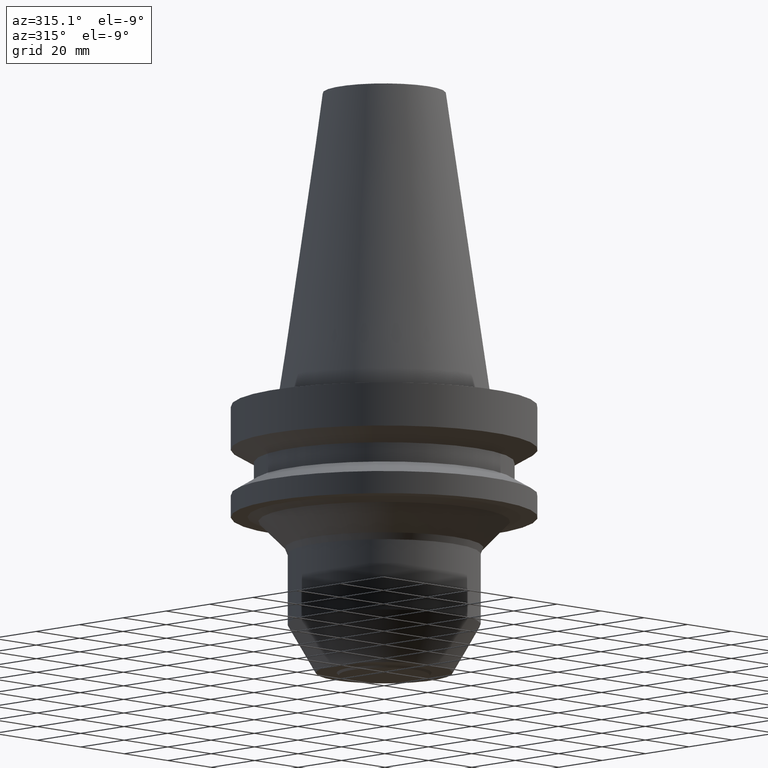
[diagram: clean part render]
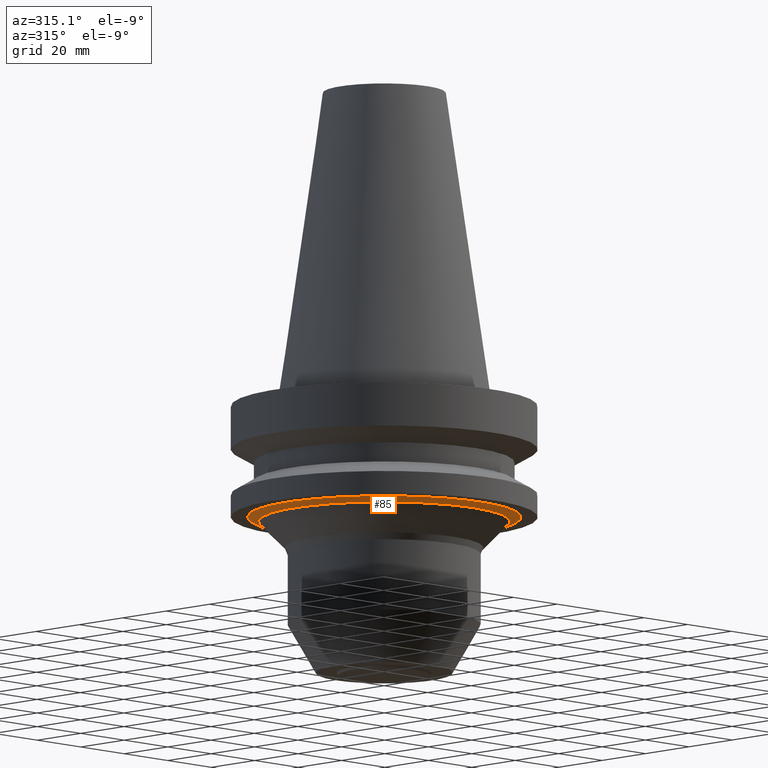
[diagram: same view with one face highlighted and labeled with its STEP entity id]
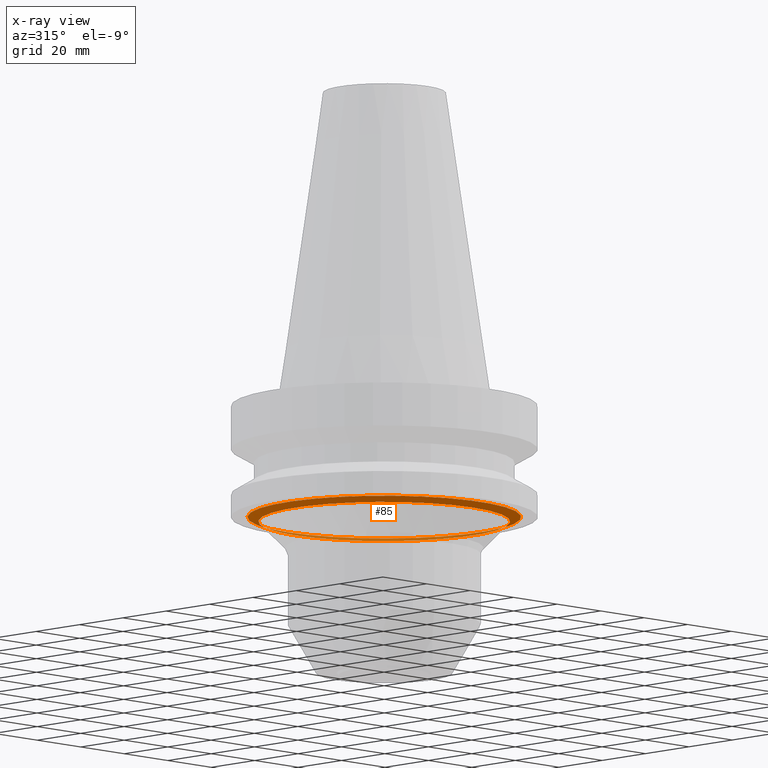
[diagram: x-ray of the same camera — body ghosted, the highlighted face saturated]
A machine part, auxiliary view. The second image highlights one B-rep face of the part: STEP entity #85.
The next image is the same camera in x-ray: the body ghosted, the highlighted face saturated — about 22% of this face is hidden behind the body in this view.
In plain terms, the highlighted conical surface has half-angle 67.5 deg.
Its self-contained STEP definition (entity closure, byte-faithful):
#85=ADVANCED_FACE('',(#123,#124),#125,.T.);
#123=FACE_BOUND('',#175,.T.);
#124=FACE_BOUND('',#176,.T.);
#125=CONICAL_SURFACE('',#177,42.8033008588975,1.17809724509639);
#175=EDGE_LOOP('',(#247));
#176=EDGE_LOOP('',(#248));
#177=AXIS2_PLACEMENT_3D('',#249,#250,#251);
#247=ORIENTED_EDGE('',*,*,#296,.F.);
#248=ORIENTED_EDGE('',*,*,#295,.T.);
#249=CARTESIAN_POINT('',(2.37166526124393E-015,8.02031202937791E-015,-38.7322330470332));
#250=DIRECTION('',(-6.12323399573677E-017,-6.14340833659414E-017,1.0));
#251=DIRECTION('',(-8.58890540841378E-033,1.0,6.14340833659414E-017));
#295=EDGE_CURVE('',#321,#321,#322,.T.);
#296=EDGE_CURVE('',#323,#323,#324,.T.);
#321=VERTEX_POINT('',#355);
#322=CIRCLE('',#356,44.5710678118638);
#323=VERTEX_POINT('',#357);
#324=CIRCLE('',#358,41.0355339059312);
#355=CARTESIAN_POINT('',(2.32682891837997E-015,44.5710678118639,-38.0));
#356=AXIS2_PLACEMENT_3D('',#398,#399,#400);
#357=CARTESIAN_POINT('',(2.41650160410788E-015,41.0355339059312,-39.4644660940664));
#358=AXIS2_PLACEMENT_3D('',#401,#402,#403);
#398=CARTESIAN_POINT('',(2.32682891837997E-015,7.97532796332322E-015,-38.0000000000001));
#399=DIRECTION('',(6.12323399573677E-017,6.1434083365947E-017,-1.0));
#400=DIRECTION('',(-8.58890540840376E-033,1.0,6.1434083365947E-017));
#401=CARTESIAN_POINT('',(2.41650160410788E-015,8.0652960954326E-015,-39.4644660940664));
#402=DIRECTION('',(6.12323399573677E-017,6.14340833659352E-017,-1.0));
#403=DIRECTION('',(-8.58890540840719E-033,1.0,6.14340833659352E-017));